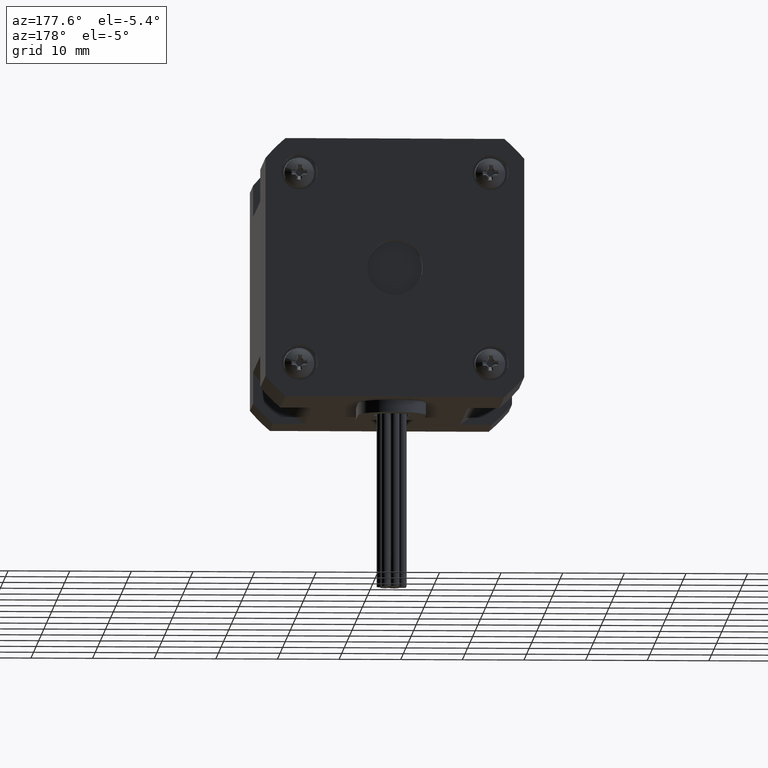
[diagram: clean part render]
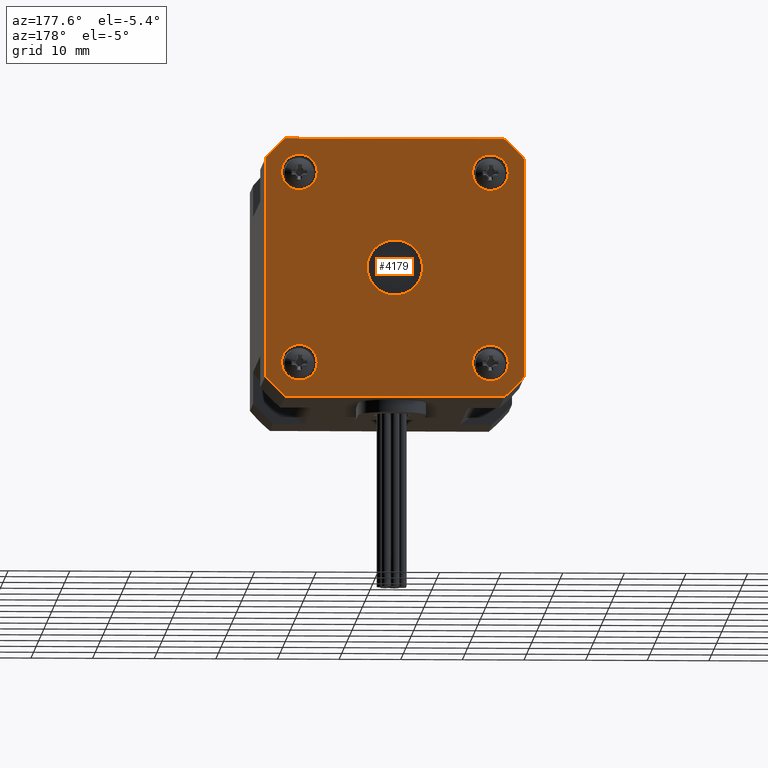
[diagram: same view with one face highlighted and labeled with its STEP entity id]
A machine part, auxiliary view. The second image highlights one B-rep face of the part: STEP entity #4179.
In plain terms, the highlighted planar face has unit normal (0, 1, -0).
Its self-contained STEP definition (entity closure, byte-faithful):
#224=PLANE('',#4510);
#374=LINE('',#6392,#596);
#379=LINE('',#6402,#601);
#388=LINE('',#6433,#610);
#391=LINE('',#6440,#613);
#596=VECTOR('',#5145,3.55105618091294);
#601=VECTOR('',#5152,3.55105618091294);
#610=VECTOR('',#5189,3.55105618091294);
#613=VECTOR('',#5198,3.55105618091294);
#800=FACE_BOUND('',#1202,.T.);
#801=FACE_BOUND('',#1203,.T.);
#802=FACE_BOUND('',#1204,.T.);
#803=FACE_BOUND('',#1205,.T.);
#804=FACE_BOUND('',#1206,.T.);
#913=FACE_OUTER_BOUND('',#1201,.T.);
#1201=EDGE_LOOP('',(#2885,#2886,#2887,#2888,#2889,#2890,#2891,#2892));
#1202=EDGE_LOOP('',(#2893));
#1203=EDGE_LOOP('',(#2894));
#1204=EDGE_LOOP('',(#2895));
#1205=EDGE_LOOP('',(#2896));
#1206=EDGE_LOOP('',(#2897));
#1488=CIRCLE('',#4447,0.29);
#1492=CIRCLE('',#4454,0.29);
#1496=CIRCLE('',#4461,0.29);
#1500=CIRCLE('',#4468,0.29);
#1503=CIRCLE('',#4473,0.45);
#1517=CIRCLE('',#4500,2.75);
#1518=CIRCLE('',#4502,2.75);
#1520=CIRCLE('',#4505,2.75);
#1521=CIRCLE('',#4508,2.75);
#1746=VERTEX_POINT('',#6295);
#1750=VERTEX_POINT('',#6306);
#1754=VERTEX_POINT('',#6317);
#1758=VERTEX_POINT('',#6328);
#1761=VERTEX_POINT('',#6336);
#1781=VERTEX_POINT('',#6389);
#1782=VERTEX_POINT('',#6391);
#1785=VERTEX_POINT('',#6399);
#1786=VERTEX_POINT('',#6401);
#1791=VERTEX_POINT('',#6419);
#1793=VERTEX_POINT('',#6427);
#1794=VERTEX_POINT('',#6432);
#1795=VERTEX_POINT('',#6436);
#2161=EDGE_CURVE('',#1746,#1746,#1488,.T.);
#2165=EDGE_CURVE('',#1750,#1750,#1492,.T.);
#2169=EDGE_CURVE('',#1754,#1754,#1496,.T.);
#2173=EDGE_CURVE('',#1758,#1758,#1500,.T.);
#2176=EDGE_CURVE('',#1761,#1761,#1503,.T.);
#2202=EDGE_CURVE('',#1782,#1781,#374,.T.);
#2207=EDGE_CURVE('',#1786,#1785,#379,.T.);
#2217=EDGE_CURVE('',#1785,#1791,#1517,.T.);
#2218=EDGE_CURVE('',#1781,#1786,#1518,.T.);
#2220=EDGE_CURVE('',#1793,#1782,#1520,.T.);
#2223=EDGE_CURVE('',#1794,#1793,#388,.T.);
#2225=EDGE_CURVE('',#1795,#1794,#1521,.T.);
#2227=EDGE_CURVE('',#1791,#1795,#391,.T.);
#2885=ORIENTED_EDGE('',*,*,#2227,.T.);
#2886=ORIENTED_EDGE('',*,*,#2225,.T.);
#2887=ORIENTED_EDGE('',*,*,#2223,.T.);
#2888=ORIENTED_EDGE('',*,*,#2220,.T.);
#2889=ORIENTED_EDGE('',*,*,#2202,.T.);
#2890=ORIENTED_EDGE('',*,*,#2218,.T.);
#2891=ORIENTED_EDGE('',*,*,#2207,.T.);
#2892=ORIENTED_EDGE('',*,*,#2217,.T.);
#2893=ORIENTED_EDGE('',*,*,#2161,.T.);
#2894=ORIENTED_EDGE('',*,*,#2165,.T.);
#2895=ORIENTED_EDGE('',*,*,#2169,.T.);
#2896=ORIENTED_EDGE('',*,*,#2173,.T.);
#2897=ORIENTED_EDGE('',*,*,#2176,.T.);
#4179=ADVANCED_FACE('',(#913,#800,#801,#802,#803,#804),#224,.T.);
#4447=AXIS2_PLACEMENT_3D('',#6296,#5040,#5041);
#4454=AXIS2_PLACEMENT_3D('',#6307,#5054,#5055);
#4461=AXIS2_PLACEMENT_3D('',#6318,#5068,#5069);
#4468=AXIS2_PLACEMENT_3D('',#6329,#5082,#5083);
#4473=AXIS2_PLACEMENT_3D('',#6337,#5092,#5093);
#4500=AXIS2_PLACEMENT_3D('',#6421,#5173,#5174);
#4502=AXIS2_PLACEMENT_3D('',#6423,#5177,#5178);
#4505=AXIS2_PLACEMENT_3D('',#6428,#5183,#5184);
#4508=AXIS2_PLACEMENT_3D('',#6437,#5193,#5194);
#4510=AXIS2_PLACEMENT_3D('',#6441,#5199,#5200);
#5040=DIRECTION('center_axis',(-1.53723188025022E-16,-1.,1.24501532695106E-16));
#5041=DIRECTION('ref_axis',(1.,-1.53723188025022E-16,-1.66533453693774E-16));
#5054=DIRECTION('center_axis',(-1.53723188025022E-16,-1.,1.24501532695106E-16));
#5055=DIRECTION('ref_axis',(1.,-1.53723188025022E-16,-1.66533453693774E-16));
#5068=DIRECTION('center_axis',(-1.53723188025022E-16,-1.,1.24501532695106E-16));
#5069=DIRECTION('ref_axis',(1.,-1.53723188025022E-16,-1.66533453693774E-16));
#5082=DIRECTION('center_axis',(-1.53723188025022E-16,-1.,1.24501532695106E-16));
#5083=DIRECTION('ref_axis',(1.,-1.53723188025022E-16,-1.66533453693774E-16));
#5092=DIRECTION('center_axis',(-1.53723188025022E-16,-1.,1.24501532695106E-16));
#5093=DIRECTION('ref_axis',(-1.,1.53723188025022E-16,1.66533453693774E-16));
#5145=DIRECTION('',(-1.,1.53723188025022E-16,1.66533453693774E-16));
#5152=DIRECTION('',(1.66533453693774E-16,1.24501532695106E-16,1.));
#5173=DIRECTION('center_axis',(1.53723188025022E-16,1.,-1.24501532695106E-16));
#5174=DIRECTION('ref_axis',(-0.763636363636364,1.9777260489367E-16,0.645646578347808));
#5177=DIRECTION('center_axis',(1.53723188025022E-16,1.,-1.24501532695106E-16));
#5178=DIRECTION('ref_axis',(-0.645646578347808,4.17695266662723E-18,-0.763636363636364));
#5183=DIRECTION('center_axis',(1.53723188025022E-16,1.,-1.24501532695106E-16));
#5184=DIRECTION('ref_axis',(0.763636363636364,-1.9777260489367E-16,-0.645646578347808));
#5189=DIRECTION('',(-1.66533453693774E-16,-1.24501532695106E-16,-1.));
#5193=DIRECTION('center_axis',(1.53723188025022E-16,1.,-1.24501532695106E-16));
#5194=DIRECTION('ref_axis',(0.645646578347808,-4.17695266662723E-18,0.763636363636364));
#5198=DIRECTION('',(1.,-1.53723188025022E-16,-1.66533453693774E-16));
#5199=DIRECTION('center_axis',(1.53723188025022E-16,1.,-1.24501532695106E-16));
#5200=DIRECTION('ref_axis',(2.22044604925031E-16,0.,1.));
#6295=CARTESIAN_POINT('',(-1.67525995329898,3.69264350961966,-0.102197207720414));
#6296=CARTESIAN_POINT('Origin',(-1.96525995329898,3.69264350961966,-0.102197207720414));
#6306=CARTESIAN_POINT('',(1.42474004670102,3.69264350961966,2.99780279227959));
#6307=CARTESIAN_POINT('Origin',(1.13474004670102,3.69264350961966,2.99780279227959));
#6317=CARTESIAN_POINT('',(-1.67525995329898,3.69264350961966,2.99780279227959));
#6318=CARTESIAN_POINT('Origin',(-1.96525995329898,3.69264350961966,2.99780279227959));
#6328=CARTESIAN_POINT('',(1.42474004670102,3.69264350961966,-0.102197207720415));
#6329=CARTESIAN_POINT('Origin',(1.13474004670102,3.69264350961966,-0.102197207720415));
#6336=CARTESIAN_POINT('',(0.0347400467010234,3.69264350961966,1.44780279227959));
#6337=CARTESIAN_POINT('Origin',(-0.415259953298977,3.69264350961966,1.44780279227959));
#6389=CARTESIAN_POINT('',(-2.19078804375545,3.69264350961966,-0.652197207720414));
#6391=CARTESIAN_POINT('',(1.36026813715749,3.69264350961966,-0.652197207720415));
#6392=CARTESIAN_POINT('',(1.36026813715749,3.69264350961966,-0.652197207720415));
#6399=CARTESIAN_POINT('',(-2.51525995329898,3.69264350961966,3.22333088273606));
#6401=CARTESIAN_POINT('',(-2.51525995329898,3.69264350961966,-0.327725298176884));
#6402=CARTESIAN_POINT('',(-2.51525995329898,3.69264350961966,-0.327725298176884));
#6419=CARTESIAN_POINT('',(-2.19078804375545,3.69264350961966,3.54780279227959));
#6421=CARTESIAN_POINT('Origin',(-0.415259953298977,3.69264350961966,1.44780279227959));
#6423=CARTESIAN_POINT('Origin',(-0.415259953298977,3.69264350961966,1.44780279227959));
#6427=CARTESIAN_POINT('',(1.68474004670102,3.69264350961966,-0.327725298176885));
#6428=CARTESIAN_POINT('Origin',(-0.415259953298977,3.69264350961966,1.44780279227959));
#6432=CARTESIAN_POINT('',(1.68474004670102,3.69264350961966,3.22333088273606));
#6433=CARTESIAN_POINT('',(1.68474004670102,3.69264350961966,3.22333088273606));
#6436=CARTESIAN_POINT('',(1.36026813715749,3.69264350961966,3.54780279227959));
#6437=CARTESIAN_POINT('Origin',(-0.415259953298977,3.69264350961966,1.44780279227959));
#6440=CARTESIAN_POINT('',(-2.19078804375545,3.69264350961966,3.54780279227959));
#6441=CARTESIAN_POINT('Origin',(0.595050716264059,3.69264350961966,2.45811346184262));